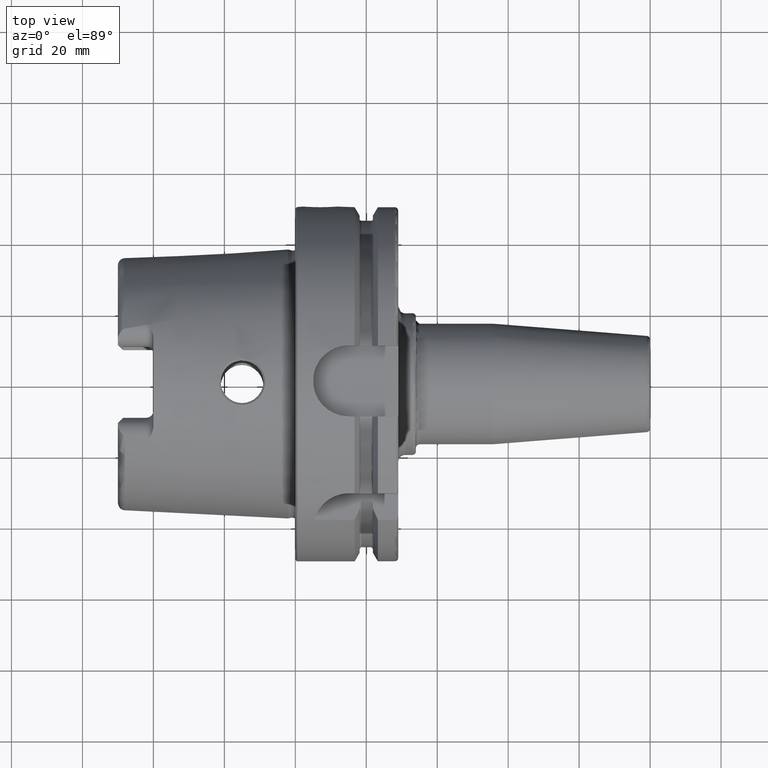
[diagram: clean part render]
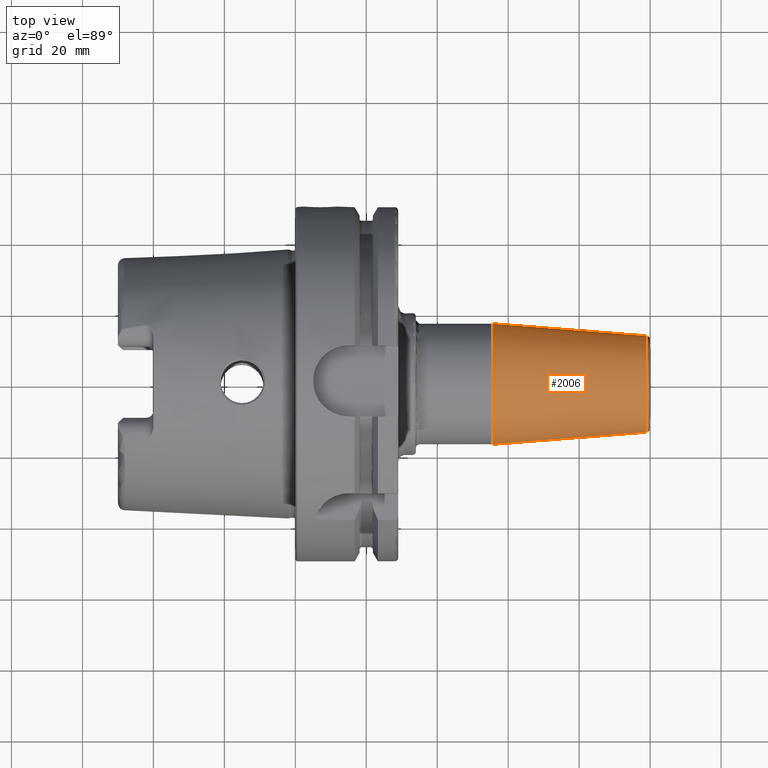
[diagram: same view with one face highlighted and labeled with its STEP entity id]
A machine part, top view. The second image highlights one B-rep face of the part: STEP entity #2006.
In plain terms, the highlighted conical surface has half-angle 4.5 deg.
Its self-contained STEP definition (entity closure, byte-faithful):
#222=FACE_OUTER_BOUND('',#344,.T.);
#344=EDGE_LOOP('',(#1384,#1385,#1386,#1387,#1388));
#474=LINE('',#3095,#580);
#580=VECTOR('',#2472,15.25);
#692=CIRCLE('',#2163,17.);
#695=CIRCLE('',#2167,13.5725268420749);
#696=CIRCLE('',#2168,13.5725268420749);
#829=VERTEX_POINT('',#3083);
#831=VERTEX_POINT('',#3089);
#832=VERTEX_POINT('',#3091);
#1042=EDGE_CURVE('',#829,#829,#692,.T.);
#1046=EDGE_CURVE('',#831,#832,#695,.T.);
#1047=EDGE_CURVE('',#832,#831,#696,.T.);
#1048=EDGE_CURVE('',#832,#829,#474,.T.);
#1384=ORIENTED_EDGE('',*,*,#1047,.F.);
#1385=ORIENTED_EDGE('',*,*,#1048,.T.);
#1386=ORIENTED_EDGE('',*,*,#1042,.T.);
#1387=ORIENTED_EDGE('',*,*,#1048,.F.);
#1388=ORIENTED_EDGE('',*,*,#1046,.F.);
#1982=CONICAL_SURFACE('',#2169,15.25,0.0785398163397448);
#2006=ADVANCED_FACE('',(#222),#1982,.T.);
#2163=AXIS2_PLACEMENT_3D('',#3084,#2457,#2458);
#2167=AXIS2_PLACEMENT_3D('',#3092,#2466,#2467);
#2168=AXIS2_PLACEMENT_3D('',#3093,#2468,#2469);
#2169=AXIS2_PLACEMENT_3D('',#3094,#2470,#2471);
#2457=DIRECTION('center_axis',(1.,0.,0.));
#2458=DIRECTION('ref_axis',(0.,0.,-1.));
#2466=DIRECTION('center_axis',(1.,0.,0.));
#2467=DIRECTION('ref_axis',(0.,-1.,3.06161699786838E-17));
#2468=DIRECTION('center_axis',(1.,0.,0.));
#2469=DIRECTION('ref_axis',(0.,-1.,3.06161699786838E-17));
#2470=DIRECTION('center_axis',(-1.,0.,0.));
#2471=DIRECTION('ref_axis',(0.,1.,0.));
#2472=DIRECTION('',(-0.996917333733128,-0.0784590957278449,-9.60846804471011E-18));
#3083=CARTESIAN_POINT('',(55.5282834233885,-17.,-2.0818995585505E-15));
#3084=CARTESIAN_POINT('Origin',(55.5282834233885,0.,0.));
#3089=CARTESIAN_POINT('',(99.0784590957279,-1.66215515534886E-15,13.5725268420749));
#3091=CARTESIAN_POINT('',(99.0784590957279,-13.5725268420749,-1.66215515534886E-15));
#3092=CARTESIAN_POINT('Origin',(99.0784590957279,0.,-2.07769394418607E-15));
#3093=CARTESIAN_POINT('Origin',(99.0784590957279,0.,-2.07769394418607E-15));
#3094=CARTESIAN_POINT('Origin',(77.7641417116943,0.,0.));
#3095=CARTESIAN_POINT('',(77.7641417116943,-15.25,-1.86758636869971E-15));